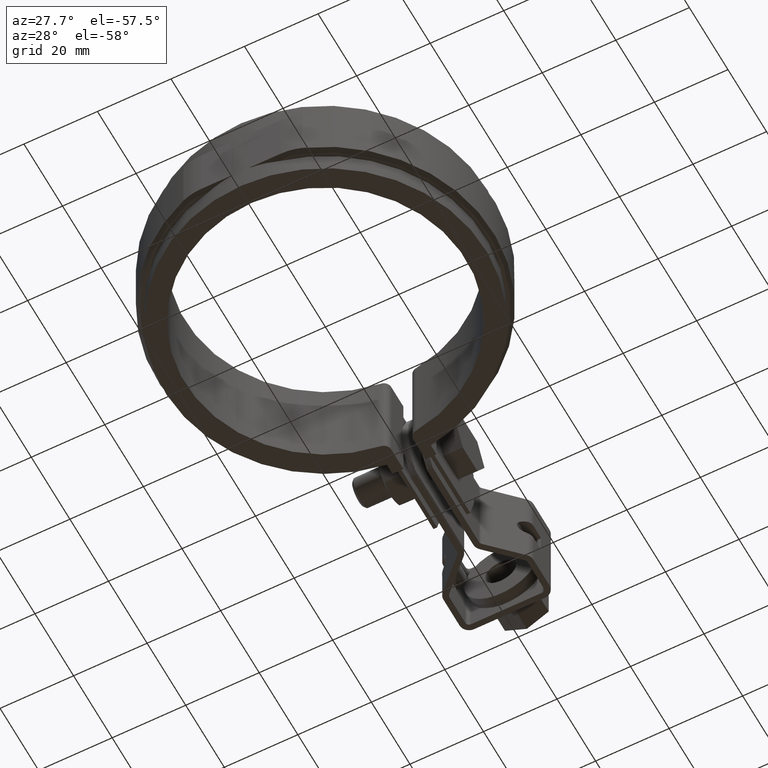
[diagram: clean part render]
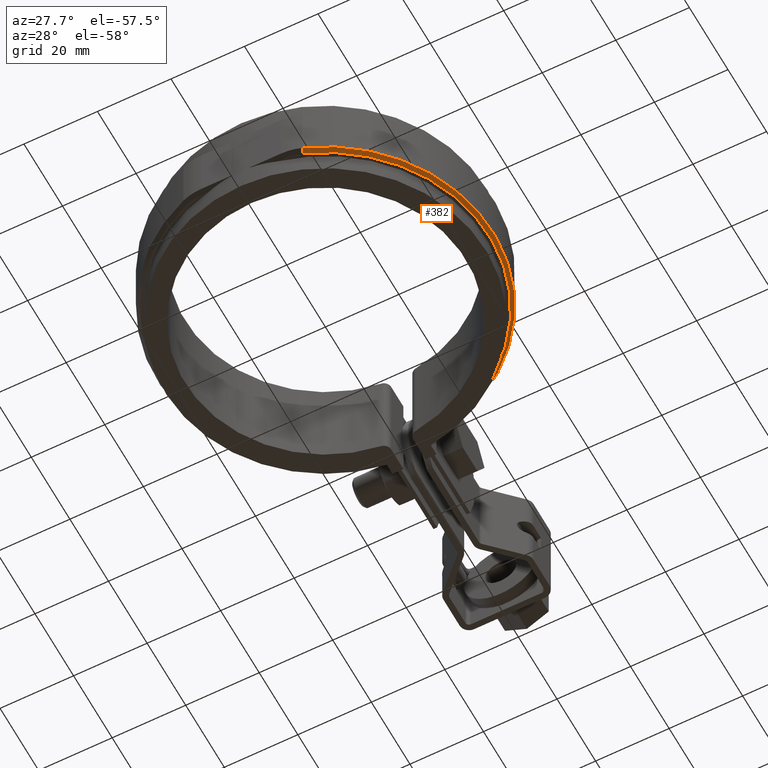
[diagram: same view with one face highlighted and labeled with its STEP entity id]
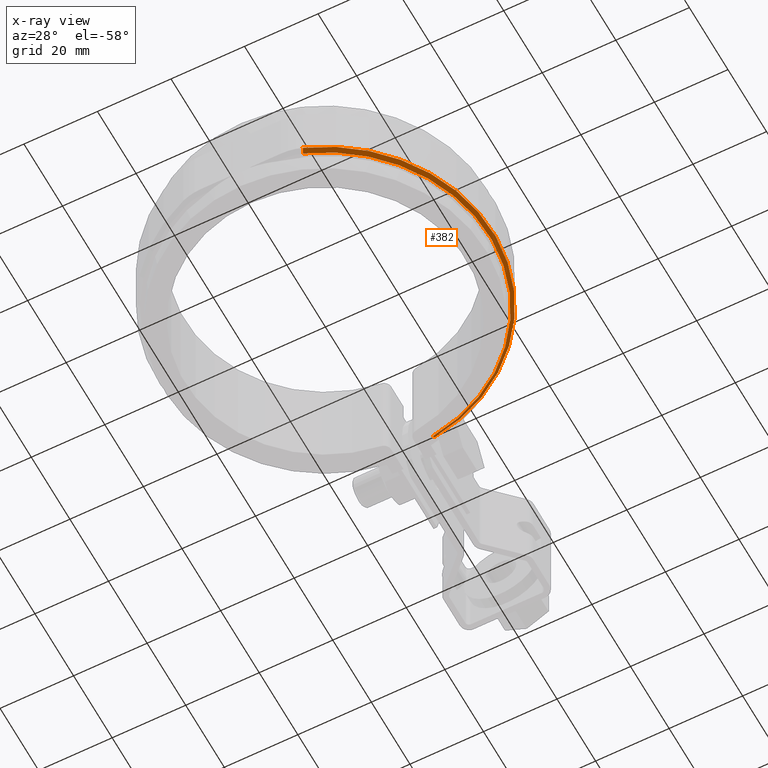
[diagram: x-ray of the same camera — body ghosted, the highlighted face saturated]
A machine part, auxiliary view. The second image highlights one B-rep face of the part: STEP entity #382.
The next image is the same camera in x-ray: the body ghosted, the highlighted face saturated — about 0% of this face is hidden behind the body in this view.
In plain terms, the highlighted conical surface has half-angle 45 deg.
Its self-contained STEP definition (entity closure, byte-faithful):
#382 = ADVANCED_FACE( '', ( #671 ), #672, .T. );
#671 = FACE_OUTER_BOUND( '', #1549, .T. );
#672 = CONICAL_SURFACE( '', #1550, 44.6500000000000, 0.785398163397450 );
#1549 = EDGE_LOOP( '', ( #3015, #3016, #3017, #3018 ) );
#1550 = AXIS2_PLACEMENT_3D( '', #3019, #3020, #3021 );
#3015 = ORIENTED_EDGE( '', *, *, #4497, .F. );
#3016 = ORIENTED_EDGE( '', *, *, #4502, .F. );
#3017 = ORIENTED_EDGE( '', *, *, #4503, .F. );
#3018 = ORIENTED_EDGE( '', *, *, #4504, .F. );
#3019 = CARTESIAN_POINT( '', ( 3.46944695195361E-015, 3.46944695195361E-014, -8.49999999999999 ) );
#3020 = DIRECTION( '', ( 0.000000000000000, 0.000000000000000, 1.00000000000000 ) );
#3021 = DIRECTION( '', ( 1.00000000000000, 0.000000000000000, 0.000000000000000 ) );
#4497 = EDGE_CURVE( '', #5240, #5242, #5243, .T. );
#4502 = EDGE_CURVE( '', #5250, #5240, #5251, .T. );
#4503 = EDGE_CURVE( '', #5252, #5250, #5253, .T. );
#4504 = EDGE_CURVE( '', #5242, #5252, #5254, .F. );
#5240 = VERTEX_POINT( '', #7869 );
#5242 = VERTEX_POINT( '', #7872 );
#5243 = B_SPLINE_CURVE_WITH_KNOTS( '', 3, ( #7873, #7874, #7875, #7876 ), .UNSPECIFIED., .F., .F., ( 4, 4 ), ( 7.75791922889773E-018, 0.00142055609219602 ), .UNSPECIFIED. );
#5250 = VERTEX_POINT( '', #7887 );
#5251 = CIRCLE( '', #7888, 45.6500000000000 );
#5252 = VERTEX_POINT( '', #7889 );
#5253 = LINE( '', #7890, #7891 );
#5254 = CIRCLE( '', #7892, 44.6500000000000 );
#7869 = CARTESIAN_POINT( '', ( 6.00000000000000, 45.2539777257204, -7.49999999999999 ) );
#7872 = CARTESIAN_POINT( '', ( 6.00000000000000, 44.2450279692533, -8.50000000000000 ) );
#7873 = CARTESIAN_POINT( '', ( 6.00000000000000, 45.2539777257205, -7.50000000000000 ) );
#7874 = CARTESIAN_POINT( '', ( 6.00000000000000, 44.9176939588437, -7.83336644240438 ) );
#7875 = CARTESIAN_POINT( '', ( 6.00000000000000, 44.5813781116257, -8.16670052728487 ) );
#7876 = CARTESIAN_POINT( '', ( 6.00000000000000, 44.2450279692532, -8.50000000000000 ) );
#7887 = CARTESIAN_POINT( '', ( 16.2200671388275, -42.6712071778140, -7.49999999999999 ) );
#7888 = AXIS2_PLACEMENT_3D( '', #9072, #9073, #9074 );
#7889 = CARTESIAN_POINT( '', ( 15.8647535103756, -41.7364600326264, -8.50000000000000 ) );
#7890 = CARTESIAN_POINT( '', ( 15.8647535103756, -41.7364600326264, -8.50000000000000 ) );
#7891 = VECTOR( '', #9075, 1000.00000000000 );
#7892 = AXIS2_PLACEMENT_3D( '', #9076, #9077, #9078 );
#9072 = CARTESIAN_POINT( '', ( 3.46944695195361E-015, 3.46944695195361E-014, -7.50000000000000 ) );
#9073 = DIRECTION( '', ( 0.000000000000000, 0.000000000000000, 1.00000000000000 ) );
#9074 = DIRECTION( '', ( 1.00000000000000, 0.000000000000000, 0.000000000000000 ) );
#9075 = DIRECTION( '', ( 0.251244676126309, -0.660966045056920, 0.707106781186547 ) );
#9076 = CARTESIAN_POINT( '', ( 3.46944695195361E-015, 3.46944695195361E-014, -8.50000000000000 ) );
#9077 = DIRECTION( '', ( 0.000000000000000, 0.000000000000000, 1.00000000000000 ) );
#9078 = DIRECTION( '', ( 1.00000000000000, 0.000000000000000, 0.000000000000000 ) );